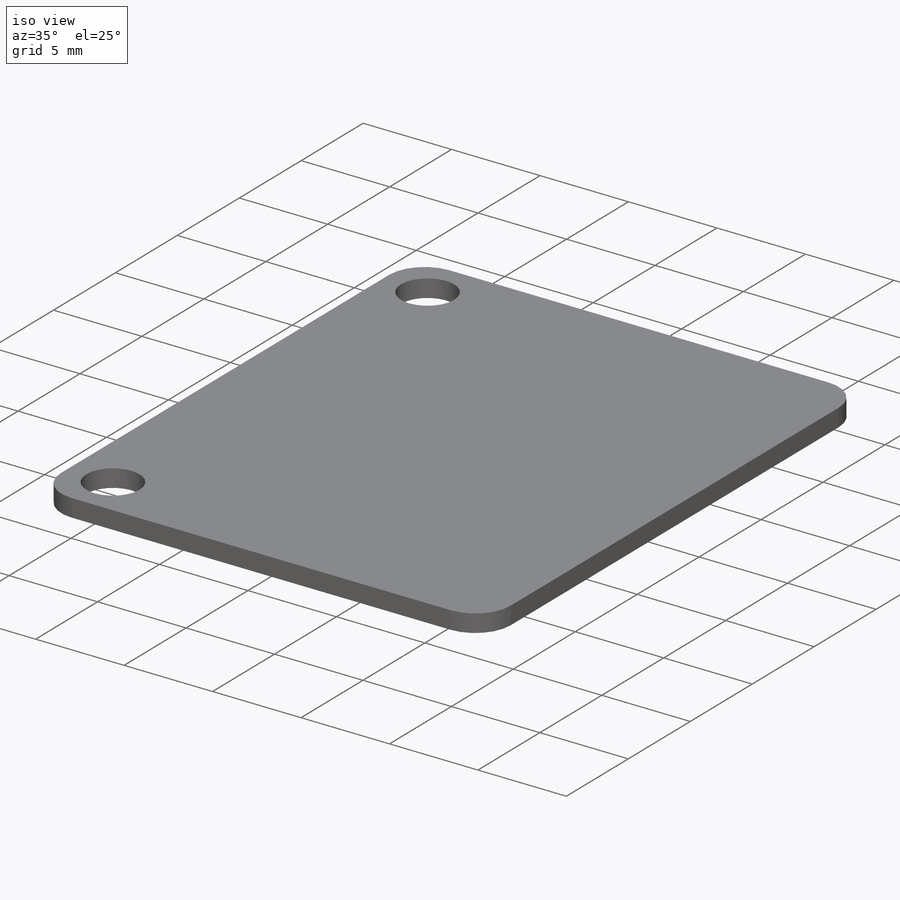
[diagram: iso view]
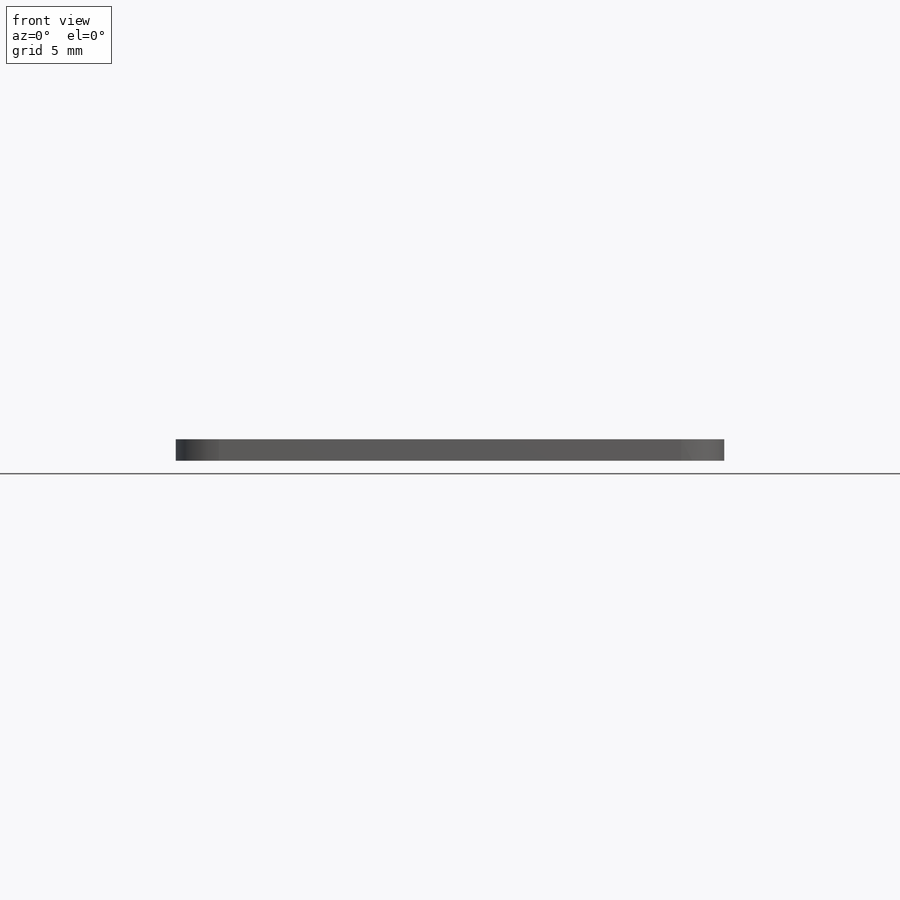
[diagram: front view]
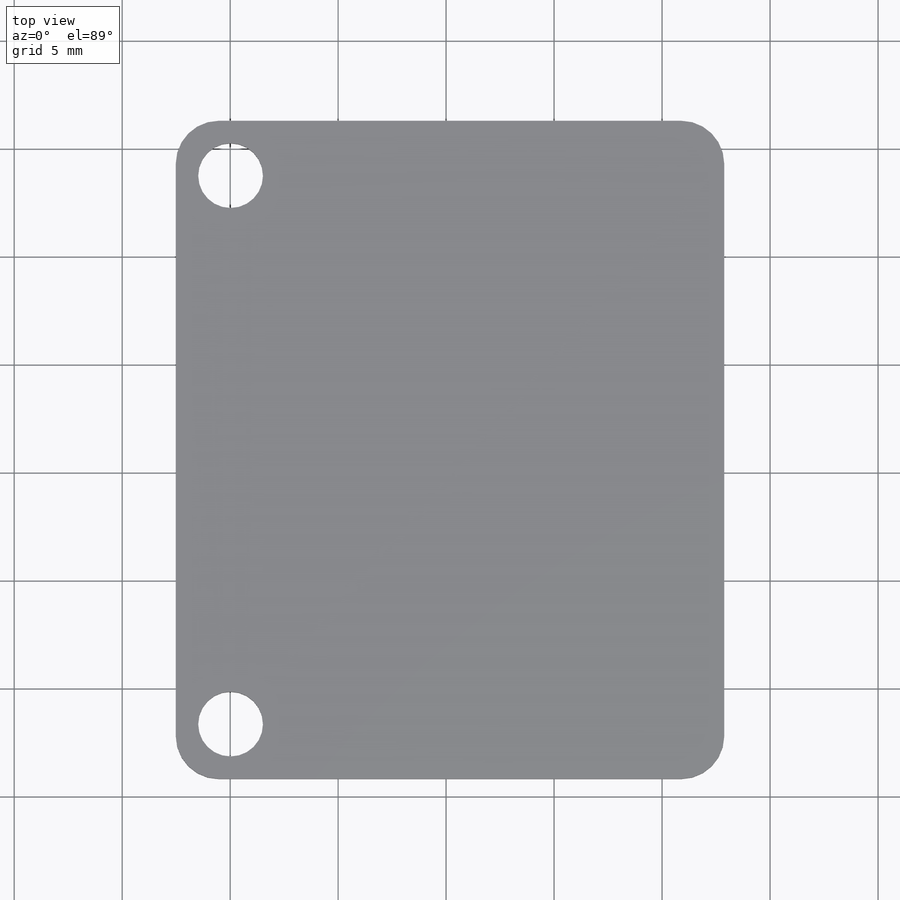
[diagram: top view]
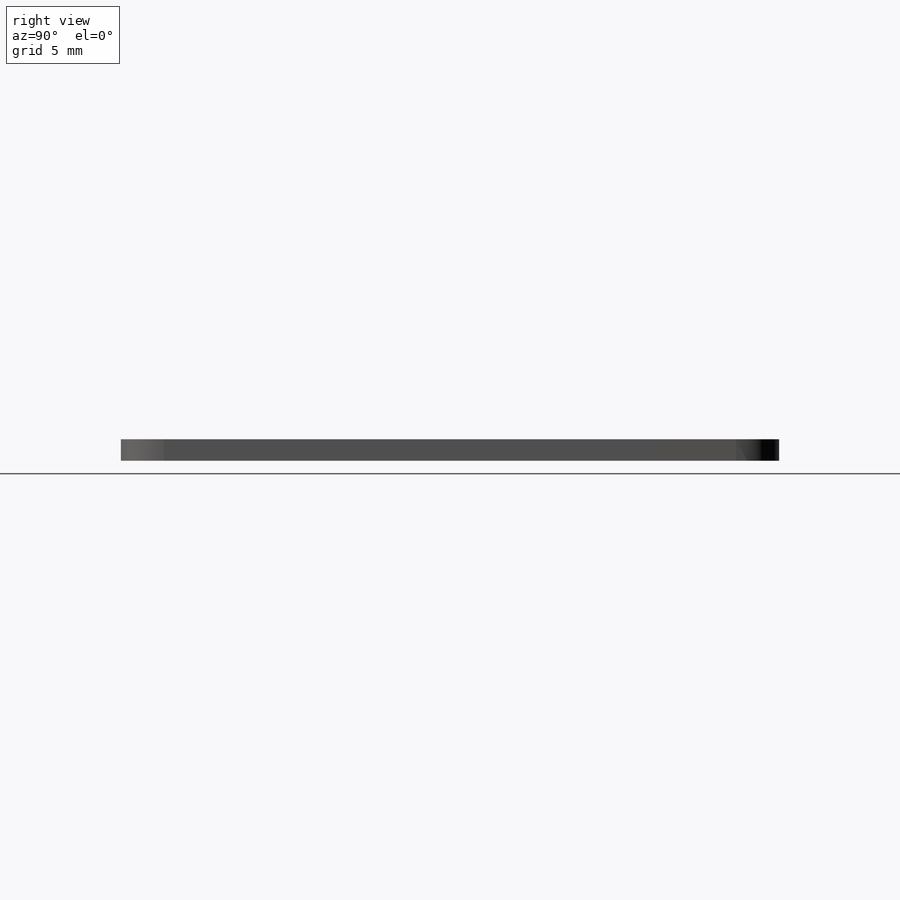
[diagram: right view]
SOLIDWORKS PART (.sldprt)
format: sldprt  version: not decoded by parser v0  size: 137,216 bytes
history: native  units: mm
features: fillet x4, material x1, sketch x1, extrude x1 (+13 scaffold rows collapsed)
feature tree (20):
  scaffold x13  (default folders/planes/origin — collapsed)
  material  "Material <not specified>"
  sketch  "Sketch1"  dims[c1.D4=3.0mm c1.D5=3.0mm c1.D6=3.0mm c1.D7=3.0mm c1.D8=3.0mm c1.D1=30.48mm c1.D2=25.4mm c1.D3=25.4mm c2.D6=2.54mm c2.D7=2.54mm c2.D8=2.54mm]
  extrude  "Boss-Extrude1"  Depth=1mm
  fillet  "Fillet1"  Radius=2mm
  fillet  "Fillet2"  Radius=2mm
  fillet  "Fillet3"  Radius=2mm
  fillet  "Fillet4"  Radius=2mm
decode coverage: 6 of 6 modeling features carry decoded parameters
note: suppression state not decoded; provenance and decode notes live in map.json
